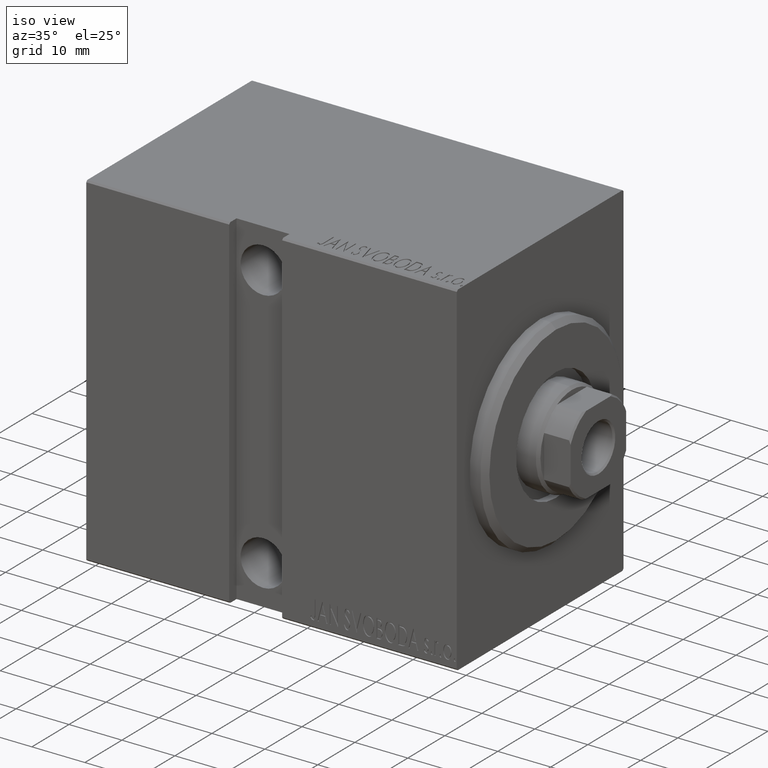
[diagram: clean part render]
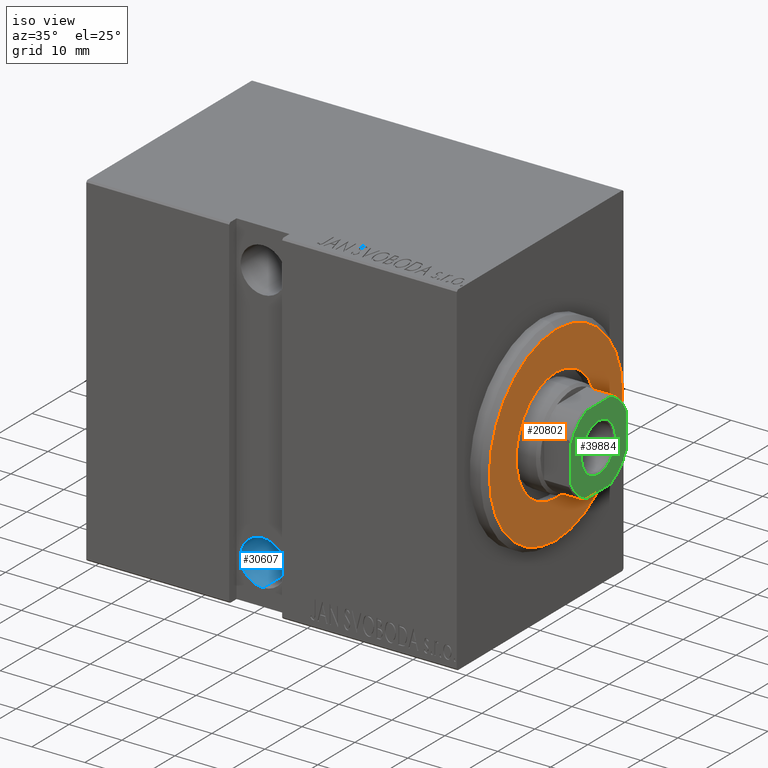
[diagram: same view with three faces highlighted in distinct colors, each labeled with its STEP entity id]
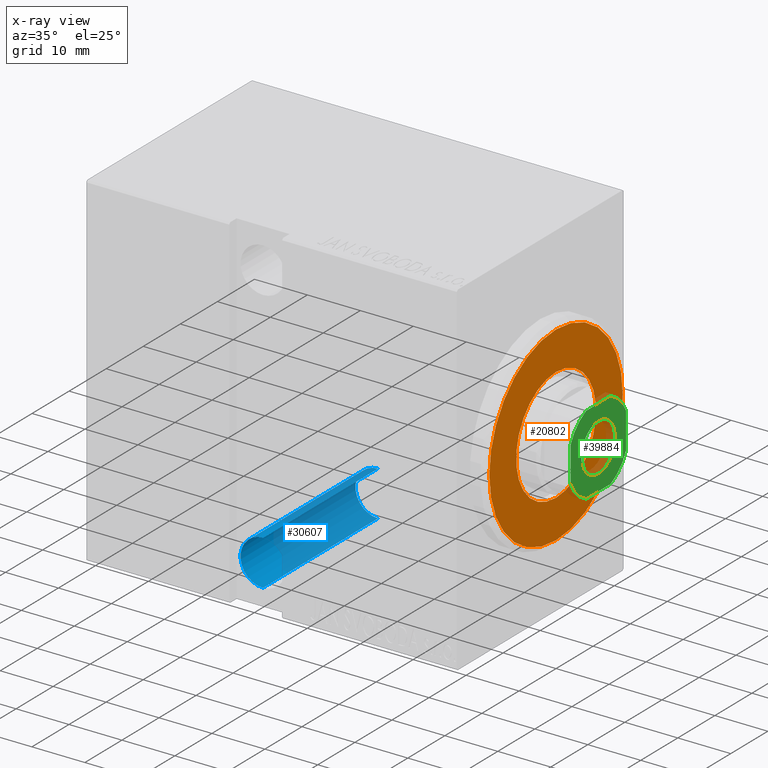
[diagram: x-ray of the same camera — body ghosted, the three highlighted faces saturated]
A machine part, iso view with three faces highlighted in distinct colors.
The next image is the same camera in x-ray (body ghosted, the three faces saturated) — at least one of them is partly hidden behind the body in this view.
Their STEP definitions:

[orange] entity #20802 — the highlighted planar face has unit normal (1, 0, 0).
#111 = DIRECTION ( 'NONE',  ( -1.000000000000000000, 0.000000000000000000, -0.000000000000000000 ) ) ;
#167 = CIRCLE ( 'NONE', #42473, 17.99999999999999645 ) ;
#706 = EDGE_CURVE ( 'NONE', #24279, #24386, #15004, .T. ) ;
#1856 = AXIS2_PLACEMENT_3D ( 'NONE', #36156, #19638, #15736 ) ;
#1964 = VERTEX_POINT ( 'NONE', #11637 ) ;
#4094 = CARTESIAN_POINT ( 'NONE',  ( 3.000000000000000000, 0.000000000000000000, 0.000000000000000000 ) ) ;
#7011 = EDGE_LOOP ( 'NONE', ( #20702, #16610 ) ) ;
#7026 = CARTESIAN_POINT ( 'NONE',  ( 3.000000000000000000, 0.000000000000000000, 0.000000000000000000 ) ) ;
#7192 = FACE_OUTER_BOUND ( 'NONE', #35015, .T. ) ;
#9824 = EDGE_CURVE ( 'NONE', #33143, #1964, #25706, .T. ) ;
#10672 = DIRECTION ( 'NONE',  ( 1.000000000000000000, -0.000000000000000000, 0.000000000000000000 ) ) ;
#11595 = CARTESIAN_POINT ( 'NONE',  ( 3.000000000000000000, 1.316495309083404223E-15, -10.75000000000000000 ) ) ;
#11637 = CARTESIAN_POINT ( 'NONE',  ( 3.000000000000000000, 0.000000000000000000, 10.75000000000000000 ) ) ;
#15004 = CIRCLE ( 'NONE', #1856, 17.99999999999999645 ) ;
#15459 = EDGE_CURVE ( 'NONE', #24386, #24279, #167, .T. ) ;
#15736 = DIRECTION ( 'NONE',  ( 0.000000000000000000, 0.000000000000000000, -1.000000000000000000 ) ) ;
#16610 = ORIENTED_EDGE ( 'NONE', *, *, #9824, .T. ) ;
#19638 = DIRECTION ( 'NONE',  ( 1.000000000000000000, -0.000000000000000000, 0.000000000000000000 ) ) ;
#19643 = DIRECTION ( 'NONE',  ( 1.000000000000000000, -0.000000000000000000, 0.000000000000000000 ) ) ;
#20288 = DIRECTION ( 'NONE',  ( 0.000000000000000000, 0.000000000000000000, -1.000000000000000000 ) ) ;
#20455 = PLANE ( 'NONE',  #32177 ) ;
#20670 = CIRCLE ( 'NONE', #24837, 10.75000000000000000 ) ;
#20702 = ORIENTED_EDGE ( 'NONE', *, *, #37113, .T. ) ;
#20802 = ADVANCED_FACE ( 'NONE', ( #7192, #27191 ), #20455, .T. ) ;
#21027 = DIRECTION ( 'NONE',  ( -1.000000000000000000, 0.000000000000000000, -0.000000000000000000 ) ) ;
#22911 = AXIS2_PLACEMENT_3D ( 'NONE', #33742, #111, #23110 ) ;
#23110 = DIRECTION ( 'NONE',  ( 0.000000000000000000, 0.000000000000000000, -1.000000000000000000 ) ) ;
#23939 = DIRECTION ( 'NONE',  ( 0.000000000000000000, 0.000000000000000000, -1.000000000000000000 ) ) ;
#24279 = VERTEX_POINT ( 'NONE', #28117 ) ;
#24386 = VERTEX_POINT ( 'NONE', #30454 ) ;
#24837 = AXIS2_PLACEMENT_3D ( 'NONE', #4094, #21027, #30576 ) ;
#25706 = CIRCLE ( 'NONE', #22911, 10.75000000000000000 ) ;
#27191 = FACE_BOUND ( 'NONE', #7011, .T. ) ;
#28117 = CARTESIAN_POINT ( 'NONE',  ( 3.000000000000000000, 0.000000000000000000, 17.99999999999999645 ) ) ;
#29970 = ORIENTED_EDGE ( 'NONE', *, *, #15459, .T. ) ;
#30454 = CARTESIAN_POINT ( 'NONE',  ( 3.000000000000000000, 2.265596578422603002E-15, -17.99999999999999645 ) ) ;
#30576 = DIRECTION ( 'NONE',  ( 0.000000000000000000, 0.000000000000000000, -1.000000000000000000 ) ) ;
#32177 = AXIS2_PLACEMENT_3D ( 'NONE', #40442, #10672, #23939 ) ;
#33143 = VERTEX_POINT ( 'NONE', #11595 ) ;
#33742 = CARTESIAN_POINT ( 'NONE',  ( 3.000000000000000000, 0.000000000000000000, 0.000000000000000000 ) ) ;
#35015 = EDGE_LOOP ( 'NONE', ( #42641, #29970 ) ) ;
#36156 = CARTESIAN_POINT ( 'NONE',  ( 3.000000000000000000, 0.000000000000000000, 0.000000000000000000 ) ) ;
#37113 = EDGE_CURVE ( 'NONE', #1964, #33143, #20670, .T. ) ;
#40442 = CARTESIAN_POINT ( 'NONE',  ( 3.000000000000000000, 0.000000000000000000, 0.000000000000000000 ) ) ;
#42473 = AXIS2_PLACEMENT_3D ( 'NONE', #7026, #19643, #20288 ) ;
#42641 = ORIENTED_EDGE ( 'NONE', *, *, #706, .T. ) ;

[blue] entity #30607 — the highlighted cylindrical surface (edge-blend (fillet) strip) has radius 4.25 mm, axis along (0, -1, 0).
#627 = CIRCLE ( 'NONE', #4090, 4.249999999999996447 ) ;
#3786 = CARTESIAN_POINT ( 'NONE',  ( 38.00000000000001421, -22.50000000000001421, -25.00000000000000000 ) ) ;
#4090 = AXIS2_PLACEMENT_3D ( 'NONE', #23851, #20807, #37535 ) ;
#4715 = DIRECTION ( 'NONE',  ( -0.000000000000000000, 1.000000000000000000, -0.000000000000000000 ) ) ;
#5697 = AXIS2_PLACEMENT_3D ( 'NONE', #26855, #36639, #40110 ) ;
#8045 = AXIS2_PLACEMENT_3D ( 'NONE', #3786, #23549, #33106 ) ;
#8253 = VERTEX_POINT ( 'NONE', #22607 ) ;
#9542 = DIRECTION ( 'NONE',  ( -0.000000000000000000, 1.000000000000000000, -0.000000000000000000 ) ) ;
#11405 = VECTOR ( 'NONE', #9542, 1000.000000000000000 ) ;
#12736 = ORIENTED_EDGE ( 'NONE', *, *, #13763, .F. ) ;
#12802 = LINE ( 'NONE', #39306, #11405 ) ;
#13763 = EDGE_CURVE ( 'NONE', #22201, #41750, #34676, .T. ) ;
#15174 = EDGE_CURVE ( 'NONE', #41750, #8253, #18881, .T. ) ;
#16081 = VECTOR ( 'NONE', #4715, 1000.000000000000000 ) ;
#18881 = CIRCLE ( 'NONE', #5697, 4.249999999999996447 ) ;
#19481 = VERTEX_POINT ( 'NONE', #36642 ) ;
#19861 = FACE_OUTER_BOUND ( 'NONE', #40632, .T. ) ;
#20807 = DIRECTION ( 'NONE',  ( -0.000000000000000000, 1.000000000000000000, -1.963837897332234442E-16 ) ) ;
#21252 = ORIENTED_EDGE ( 'NONE', *, *, #15174, .F. ) ;
#22201 = VERTEX_POINT ( 'NONE', #30787 ) ;
#22607 = CARTESIAN_POINT ( 'NONE',  ( 38.00000000000001421, 20.49999999999999645, -20.75000000000000355 ) ) ;
#23549 = DIRECTION ( 'NONE',  ( -0.000000000000000000, 1.000000000000000000, -0.000000000000000000 ) ) ;
#23765 = CYLINDRICAL_SURFACE ( 'NONE', #8045, 4.249999999999996447 ) ;
#23851 = CARTESIAN_POINT ( 'NONE',  ( 38.00000000000001421, -10.49999999999999822, -25.00000000000000000 ) ) ;
#25153 = CARTESIAN_POINT ( 'NONE',  ( 38.00000000000001421, 20.49999999999999645, -29.25000000000000000 ) ) ;
#26430 = EDGE_CURVE ( 'NONE', #19481, #8253, #12802, .T. ) ;
#26855 = CARTESIAN_POINT ( 'NONE',  ( 38.00000000000001421, 20.49999999999999645, -25.00000000000000000 ) ) ;
#30607 = ADVANCED_FACE ( 'NONE', ( #19861 ), #23765, .F. ) ;
#30787 = CARTESIAN_POINT ( 'NONE',  ( 38.00000000000001421, -10.49999999999999822, -29.25000000000000000 ) ) ;
#31209 = CARTESIAN_POINT ( 'NONE',  ( 38.00000000000001421, -22.50000000000001421, -29.25000000000000000 ) ) ;
#31767 = ORIENTED_EDGE ( 'NONE', *, *, #26430, .T. ) ;
#33106 = DIRECTION ( 'NONE',  ( 0.000000000000000000, 0.000000000000000000, 1.000000000000000000 ) ) ;
#34676 = LINE ( 'NONE', #31209, #16081 ) ;
#36639 = DIRECTION ( 'NONE',  ( 0.000000000000000000, -1.000000000000000000, 0.000000000000000000 ) ) ;
#36642 = CARTESIAN_POINT ( 'NONE',  ( 38.00000000000001421, -10.49999999999999822, -20.75000000000000355 ) ) ;
#37535 = DIRECTION ( 'NONE',  ( 0.000000000000000000, 0.000000000000000000, -1.000000000000000000 ) ) ;
#39306 = CARTESIAN_POINT ( 'NONE',  ( 38.00000000000001421, -22.50000000000001421, -20.75000000000000355 ) ) ;
#39639 = EDGE_CURVE ( 'NONE', #19481, #22201, #627, .T. ) ;
#40110 = DIRECTION ( 'NONE',  ( 0.000000000000000000, 0.000000000000000000, -1.000000000000000000 ) ) ;
#40632 = EDGE_LOOP ( 'NONE', ( #12736, #42599, #31767, #21252 ) ) ;
#41750 = VERTEX_POINT ( 'NONE', #25153 ) ;
#42599 = ORIENTED_EDGE ( 'NONE', *, *, #39639, .F. ) ;

[green] entity #39884 — the highlighted planar face has unit normal (1, 0, -0).
#780 = VERTEX_POINT ( 'NONE', #5540 ) ;
#954 = DIRECTION ( 'NONE',  ( -0.000000000000000000, 0.000000000000000000, 1.000000000000000000 ) ) ;
#1286 = CIRCLE ( 'NONE', #34527, 4.549999999999991829 ) ;
#1650 = CARTESIAN_POINT ( 'NONE',  ( 0.000000000000000000, 0.000000000000000000, 75.00000000000001421 ) ) ;
#2551 = PLANE ( 'NONE',  #21326 ) ;
#2716 = ORIENTED_EDGE ( 'NONE', *, *, #33288, .T. ) ;
#2978 = VERTEX_POINT ( 'NONE', #19226 ) ;
#3346 = AXIS2_PLACEMENT_3D ( 'NONE', #1650, #5105, #14876 ) ;
#3985 = CARTESIAN_POINT ( 'NONE',  ( 0.000000000000000000, 0.000000000000000000, 75.00000000000001421 ) ) ;
#4234 = DIRECTION ( 'NONE',  ( -0.000000000000000000, 0.000000000000000000, 1.000000000000000000 ) ) ;
#5105 = DIRECTION ( 'NONE',  ( -0.000000000000000000, 0.000000000000000000, 1.000000000000000000 ) ) ;
#5474 = ORIENTED_EDGE ( 'NONE', *, *, #16028, .T. ) ;
#5540 = CARTESIAN_POINT ( 'NONE',  ( 3.315116890850187570, -7.499999999999996447, 75.00000000000001421 ) ) ;
#6337 = CARTESIAN_POINT ( 'NONE',  ( 0.000000000000000000, 0.000000000000000000, 75.00000000000001421 ) ) ;
#6454 = CARTESIAN_POINT ( 'NONE',  ( 7.499999999999998224, 3.315116890850192899, 75.00000000000001421 ) ) ;
#7353 = CARTESIAN_POINT ( 'NONE',  ( -7.499999999999999112, -7.499999999999998224, 75.00000000000001421 ) ) ;
#7662 = DIRECTION ( 'NONE',  ( 1.000000000000000000, 0.000000000000000000, 0.000000000000000000 ) ) ;
#7776 = VECTOR ( 'NONE', #20618, 1000.000000000000000 ) ;
#8702 = CARTESIAN_POINT ( 'NONE',  ( 4.549999999999991829, 0.000000000000000000, 75.00000000000001421 ) ) ;
#9674 = FACE_BOUND ( 'NONE', #24871, .T. ) ;
#10173 = CIRCLE ( 'NONE', #42131, 4.549999999999991829 ) ;
#10854 = VERTEX_POINT ( 'NONE', #20242 ) ;
#11027 = VERTEX_POINT ( 'NONE', #19553 ) ;
#12013 = CARTESIAN_POINT ( 'NONE',  ( -7.500000000000001776, 7.500000000000001776, 75.00000000000001421 ) ) ;
#12243 = ORIENTED_EDGE ( 'NONE', *, *, #33190, .T. ) ;
#12846 = CIRCLE ( 'NONE', #21181, 8.200000000000024158 ) ;
#12859 = DIRECTION ( 'NONE',  ( 1.000000000000000000, 0.000000000000000000, 0.000000000000000000 ) ) ;
#13474 = ORIENTED_EDGE ( 'NONE', *, *, #17585, .T. ) ;
#13980 = CARTESIAN_POINT ( 'NONE',  ( -4.549999999999991829, 5.572142936120446480E-16, 75.00000000000001421 ) ) ;
#14122 = EDGE_CURVE ( 'NONE', #780, #27269, #20934, .T. ) ;
#14839 = LINE ( 'NONE', #41358, #16437 ) ;
#14876 = DIRECTION ( 'NONE',  ( 1.000000000000000000, 0.000000000000000000, 0.000000000000000000 ) ) ;
#15904 = DIRECTION ( 'NONE',  ( -1.156482317317871478E-16, 1.000000000000000000, -0.000000000000000000 ) ) ;
#16028 = EDGE_CURVE ( 'NONE', #11027, #780, #37131, .T. ) ;
#16304 = LINE ( 'NONE', #26093, #17569 ) ;
#16437 = VECTOR ( 'NONE', #15904, 1000.000000000000000 ) ;
#17569 = VECTOR ( 'NONE', #32403, 1000.000000000000000 ) ;
#17585 = EDGE_CURVE ( 'NONE', #31497, #10854, #16304, .T. ) ;
#19226 = CARTESIAN_POINT ( 'NONE',  ( 3.315116890850187126, 7.500000000000000888, 75.00000000000001421 ) ) ;
#19553 = CARTESIAN_POINT ( 'NONE',  ( -3.315116890850222653, -7.499999999999998224, 75.00000000000001421 ) ) ;
#19784 = VERTEX_POINT ( 'NONE', #13980 ) ;
#20242 = CARTESIAN_POINT ( 'NONE',  ( -7.499999999999999112, -3.315116890850218212, 75.00000000000001421 ) ) ;
#20618 = DIRECTION ( 'NONE',  ( 1.000000000000000000, 0.000000000000000000, 0.000000000000000000 ) ) ;
#20934 = CIRCLE ( 'NONE', #35511, 8.200000000000011724 ) ;
#21181 = AXIS2_PLACEMENT_3D ( 'NONE', #3985, #954, #7662 ) ;
#21326 = AXIS2_PLACEMENT_3D ( 'NONE', #29031, #35766, #36190 ) ;
#21408 = CARTESIAN_POINT ( 'NONE',  ( 0.000000000000000000, 0.000000000000000000, 75.00000000000001421 ) ) ;
#22015 = CARTESIAN_POINT ( 'NONE',  ( 0.000000000000000000, 0.000000000000000000, 75.00000000000001421 ) ) ;
#22078 = CIRCLE ( 'NONE', #3346, 8.200000000000002842 ) ;
#22229 = DIRECTION ( 'NONE',  ( 0.000000000000000000, -0.000000000000000000, -1.000000000000000000 ) ) ;
#22932 = FACE_OUTER_BOUND ( 'NONE', #32394, .T. ) ;
#23913 = VERTEX_POINT ( 'NONE', #6454 ) ;
#24773 = VECTOR ( 'NONE', #42204, 1000.000000000000000 ) ;
#24853 = LINE ( 'NONE', #12013, #24773 ) ;
#24871 = EDGE_LOOP ( 'NONE', ( #27918, #12243 ) ) ;
#25415 = CARTESIAN_POINT ( 'NONE',  ( -7.500000000000000888, 3.315116890850160036, 75.00000000000001421 ) ) ;
#25643 = CARTESIAN_POINT ( 'NONE',  ( 7.499999999999998224, -3.315116890850184461, 75.00000000000001421 ) ) ;
#26093 = CARTESIAN_POINT ( 'NONE',  ( -7.500000000000001776, 7.500000000000001776, 75.00000000000001421 ) ) ;
#27225 = CARTESIAN_POINT ( 'NONE',  ( -3.315116890850159148, 7.500000000000000888, 75.00000000000001421 ) ) ;
#27249 = CARTESIAN_POINT ( 'NONE',  ( 0.000000000000000000, 0.000000000000000000, 75.00000000000001421 ) ) ;
#27269 = VERTEX_POINT ( 'NONE', #25643 ) ;
#27560 = CIRCLE ( 'NONE', #29624, 8.200000000000013500 ) ;
#27918 = ORIENTED_EDGE ( 'NONE', *, *, #36512, .T. ) ;
#28109 = DIRECTION ( 'NONE',  ( 1.000000000000000000, 0.000000000000000000, 0.000000000000000000 ) ) ;
#28868 = EDGE_CURVE ( 'NONE', #10854, #11027, #12846, .T. ) ;
#28951 = DIRECTION ( 'NONE',  ( 1.000000000000000000, 0.000000000000000000, 0.000000000000000000 ) ) ;
#29031 = CARTESIAN_POINT ( 'NONE',  ( 0.000000000000000000, 0.000000000000000000, 75.00000000000001421 ) ) ;
#29624 = AXIS2_PLACEMENT_3D ( 'NONE', #6337, #30000, #12859 ) ;
#30000 = DIRECTION ( 'NONE',  ( -0.000000000000000000, 0.000000000000000000, 1.000000000000000000 ) ) ;
#31389 = DIRECTION ( 'NONE',  ( 1.000000000000000000, 0.000000000000000000, 0.000000000000000000 ) ) ;
#31497 = VERTEX_POINT ( 'NONE', #25415 ) ;
#31555 = ORIENTED_EDGE ( 'NONE', *, *, #33226, .T. ) ;
#32394 = EDGE_LOOP ( 'NONE', ( #39439, #2716, #31555, #42175, #13474, #38230, #5474, #37212 ) ) ;
#32403 = DIRECTION ( 'NONE',  ( 1.734723475976807094E-16, -1.000000000000000000, 0.000000000000000000 ) ) ;
#33190 = EDGE_CURVE ( 'NONE', #19784, #34687, #10173, .T. ) ;
#33226 = EDGE_CURVE ( 'NONE', #2978, #42129, #24853, .T. ) ;
#33288 = EDGE_CURVE ( 'NONE', #23913, #2978, #27560, .T. ) ;
#34399 = EDGE_CURVE ( 'NONE', #27269, #23913, #14839, .T. ) ;
#34527 = AXIS2_PLACEMENT_3D ( 'NONE', #21408, #38547, #31389 ) ;
#34687 = VERTEX_POINT ( 'NONE', #8702 ) ;
#35511 = AXIS2_PLACEMENT_3D ( 'NONE', #27249, #4234, #28109 ) ;
#35766 = DIRECTION ( 'NONE',  ( -0.000000000000000000, 0.000000000000000000, 1.000000000000000000 ) ) ;
#36190 = DIRECTION ( 'NONE',  ( 1.000000000000000000, 0.000000000000000000, 0.000000000000000000 ) ) ;
#36512 = EDGE_CURVE ( 'NONE', #34687, #19784, #1286, .T. ) ;
#37131 = LINE ( 'NONE', #7353, #7776 ) ;
#37212 = ORIENTED_EDGE ( 'NONE', *, *, #14122, .T. ) ;
#37420 = EDGE_CURVE ( 'NONE', #42129, #31497, #22078, .T. ) ;
#38230 = ORIENTED_EDGE ( 'NONE', *, *, #28868, .T. ) ;
#38547 = DIRECTION ( 'NONE',  ( 0.000000000000000000, -0.000000000000000000, -1.000000000000000000 ) ) ;
#39439 = ORIENTED_EDGE ( 'NONE', *, *, #34399, .T. ) ;
#39884 = ADVANCED_FACE ( 'NONE', ( #9674, #22932 ), #2551, .T. ) ;
#41358 = CARTESIAN_POINT ( 'NONE',  ( 7.499999999999997335, 7.500000000000000888, 75.00000000000001421 ) ) ;
#42129 = VERTEX_POINT ( 'NONE', #27225 ) ;
#42131 = AXIS2_PLACEMENT_3D ( 'NONE', #22015, #22229, #28951 ) ;
#42175 = ORIENTED_EDGE ( 'NONE', *, *, #37420, .T. ) ;
#42204 = DIRECTION ( 'NONE',  ( -1.000000000000000000, 5.782411586589357392E-17, -0.000000000000000000 ) ) ;